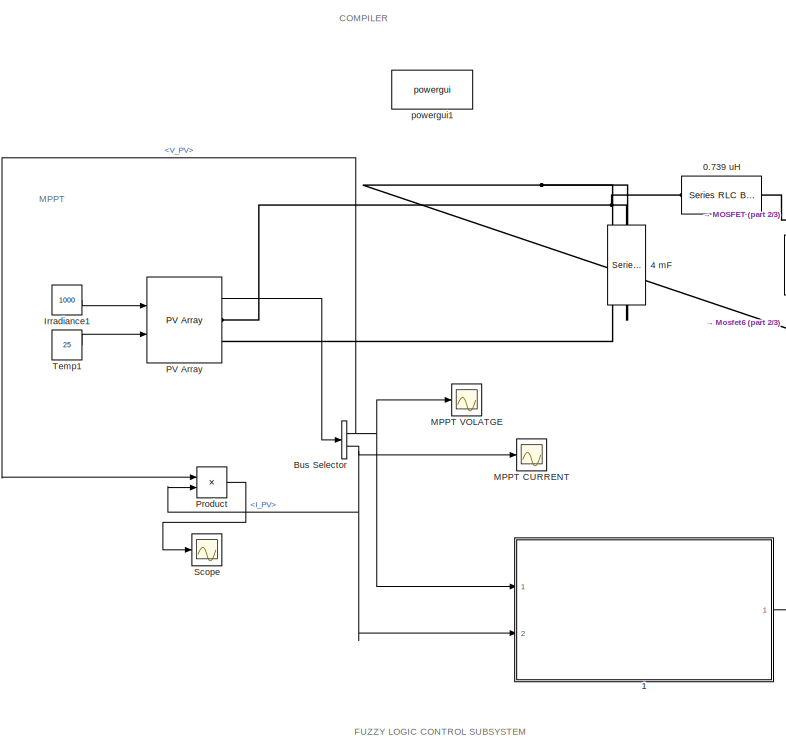
[diagram: root canvas - part 1/3, left side, full height]
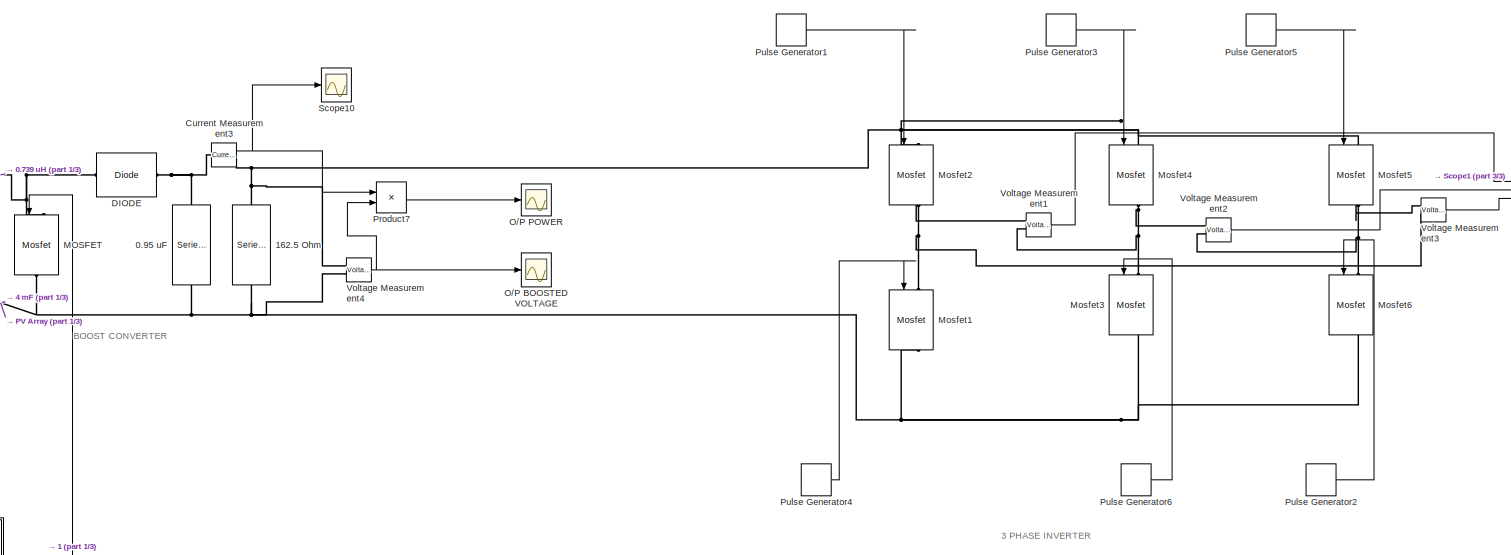
[diagram: root canvas - part 2/3, central region]
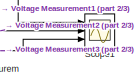
[diagram: root canvas - part 3/3, top right region]
MODEL slx_f401bb2e6b89
KIND model
CONFIG AbsTol = auto
CONFIG EnableMultiTasking = off
CONFIG FixedStep = 1e-10
CONFIG MaxStep = auto
CONFIG MinStep = auto
CONFIG RelTol = 1e-3
CONFIG SampleTimeConstraint = Unconstrained
CONFIG Solver = VariableStepAuto
CONFIG SolverName = VariableStepAuto
CONFIG StartTime = 0.0
CONFIG StopTime = 10.0
BLOCK [Reference] 0.739 uH  REF=powerlib/Elements/Series RLC Branch
  Ports = [0, 0, 0, 0, 0, 1, 1]
  SourceBlock = powerlib/Elements/Series RLC Branch
  SourceProductBaseCode = PS
  SourceType = Series RLC Branch
BLOCK [Reference] 0.95 uF  REF=powerlib/Elements/Series RLC Branch
  NameLocation = left
  Ports = [0, 0, 0, 0, 0, 1, 1]
  SourceBlock = powerlib/Elements/Series RLC Branch
  SourceProductBaseCode = PS
  SourceType = Series RLC Branch
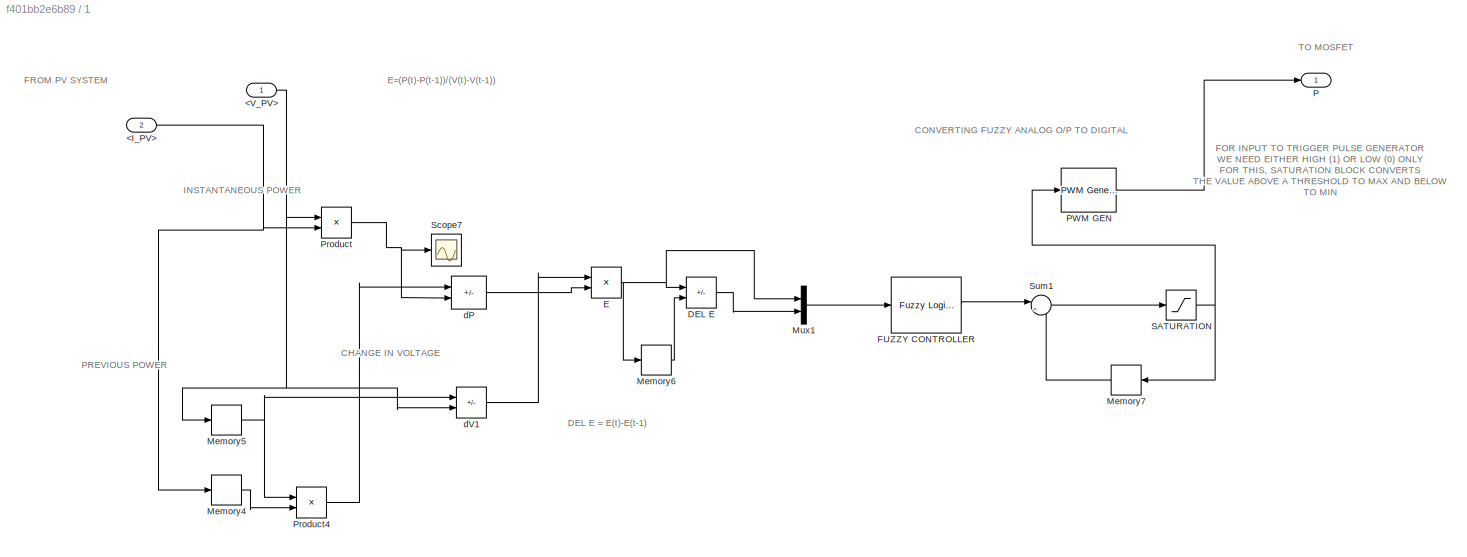
BLOCK [SubSystem] 1
  Ports = [2, 1]
  RequestExecContextInheritance = off
BLOCK [Inport] 1/<I_PV>
  Port = 2
BLOCK [Inport] 1/<V_PV>
BLOCK [Sum] 1/DEL E
  IconShape = rectangular
  Inputs = +-
  Ports = [2, 1]
BLOCK [Product] 1/E
  Inputs = */
  Ports = [2, 1]
BLOCK [Reference] 1/FUZZY CONTROLLER  REF=fuzblock/Fuzzy Logic   (lib defined in mdl_858b3b3e7478)
Controller
  Ports = [1, 1]
  SourceBlock = fuzblock/Fuzzy Logic \nController
  SourceProductBaseCode = FL
  SourceType = Fuzzy Inference System
BLOCK [Memory] 1/Memory4
BLOCK [Memory] 1/Memory5
BLOCK [Memory] 1/Memory6
BLOCK [Memory] 1/Memory7
  NameLocation = top
BLOCK [Mux] 1/Mux1
  DisplayOption = bar
  Inputs = 2
  Ports = [2, 1]
BLOCK [Outport] 1/P
BLOCK [Reference] 1/PWM GEN  REF=powerlib_meascontrol/Pulse & Signal
Generators/PWM Generator
(DC-DC)
  Ports = [1, 1]
  SourceBlock = powerlib_meascontrol/Pulse & Signal\nGenerators/PWM Generator\n(DC-DC)
  SourceProductBaseCode = PS
  SourceType = PWM Generator (DC-DC)
BLOCK [Product] 1/Product
  Ports = [2, 1]
BLOCK [Product] 1/Product4
  Ports = [2, 1]
BLOCK [Saturate] 1/SATURATION
BLOCK [Scope] 1/Scope7
  Floating = off
  NumInputPorts = 1
  Ports = [1]
  ScopeSpecificationString = Simulink.scopes.TimeScopeBlockCfg('CurrentConfiguration', extmgr.ConfigurationSet(extmgr.Configuration('Core','General UI',true),extmgr.Configuration('Core','Source UI',true),extmgr.Configuration('Sources','WiredSimulink',true,'DataLoggingVariableName','ScopeData2'),extmgr.Configuration('Visuals','Time Domain',true,'SerializedDisplays',{struct('MinYLimReal','-21.46473','MaxYLimReal','193.18259','Y...<+1747ch>
BLOCK [Sum] 1/Sum1
  Inputs = |++
  Ports = [2, 1]
BLOCK [Sum] 1/dP
  IconShape = rectangular
  Inputs = +-
  Ports = [2, 1]
BLOCK [Sum] 1/dV1
  IconShape = rectangular
  Inputs = +-
  Ports = [2, 1]
BLOCK [Reference] 162.5 Ohm  REF=powerlib/Elements/Series RLC Branch
  NameLocation = right
  Ports = [0, 0, 0, 0, 0, 1, 1]
  SourceBlock = powerlib/Elements/Series RLC Branch
  SourceProductBaseCode = PS
  SourceType = Series RLC Branch
BLOCK [Reference] 4 mF  REF=powerlib/Elements/Series RLC Branch
  NameLocation = left
  Ports = [0, 0, 0, 0, 0, 1, 1]
  SourceBlock = powerlib/Elements/Series RLC Branch
  SourceProductBaseCode = PS
  SourceType = Series RLC Branch
BLOCK [BusSelector] Bus Selector
  OutputSignals = V_PV,I_PV
  Ports = [1, 2]
BLOCK [Reference] Current Measurement3  REF=powerlib/Measurements/Current Measurement
  Ports = [0, 1, 0, 0, 0, 1, 1]
  SourceBlock = powerlib/Measurements/Current Measurement
  SourceProductBaseCode = PS
  SourceType = Current Measurement
  UserDataPersistent = on
BLOCK [Reference] DIODE  REF=powerlib/Power
Electronics/Diode
  Ports = [0, 0, 0, 0, 0, 1, 1]
  SourceBlock = powerlib/Power\nElectronics/Diode
  SourceProductBaseCode = PS
  SourceType = Diode
BLOCK [Constant] Irradiance1
  Value = 1000
BLOCK [Reference] MOSFET  REF=powerlib/Power
Electronics/Mosfet
  NameLocation = left
  Ports = [1, 0, 0, 0, 0, 1, 1]
  SourceBlock = powerlib/Power\nElectronics/Mosfet
  SourceProductBaseCode = PS
  SourceType = Mosfet
BLOCK [Scope] MPPT CURRENT
  Floating = off
  NumInputPorts = 1
  Ports = [1]
  ScopeSpecificationString = Simulink.scopes.TimeScopeBlockCfg('CurrentConfiguration', extmgr.ConfigurationSet(extmgr.Configuration('Core','General UI',true),extmgr.Configuration('Core','Source UI',true),extmgr.Configuration('Sources','WiredSimulink',true,'DataLoggingVariableName','ScopeData6'),extmgr.Configuration('Visuals','Time Domain',true,'SerializedDisplays',{struct('MinYLimReal','8.03349','MaxYLimReal','8.24945','YLabe...<+1723ch>
BLOCK [Scope] MPPT VOLATGE
  Floating = off
  NumInputPorts = 1
  Ports = [1]
  ScopeSpecificationString = Simulink.scopes.TimeScopeBlockCfg('CurrentConfiguration', extmgr.ConfigurationSet(extmgr.Configuration('Core','General UI',true),extmgr.Configuration('Core','Source UI',true),extmgr.Configuration('Sources','WiredSimulink',true,'DataLoggingVariableName','ScopeData5'),extmgr.Configuration('Visuals','Time Domain',true,'SerializedDisplays',{struct('MinYLimReal','-2.67779','MaxYLimReal','24.10008','YLa...<+1759ch>
BLOCK [Reference] Mosfet1  REF=powerlib/Power
Electronics/Mosfet
  NameLocation = left
  Ports = [1, 1, 0, 0, 0, 1, 1]
  SourceBlock = powerlib/Power\nElectronics/Mosfet
  SourceProductBaseCode = PS
  SourceType = Mosfet
BLOCK [Reference] Mosfet2  REF=powerlib/Power
Electronics/Mosfet
  NameLocation = left
  Ports = [1, 1, 0, 0, 0, 1, 1]
  SourceBlock = powerlib/Power\nElectronics/Mosfet
  SourceProductBaseCode = PS
  SourceType = Mosfet
BLOCK [Reference] Mosfet3  REF=powerlib/Power
Electronics/Mosfet
  NameLocation = left
  Ports = [1, 1, 0, 0, 0, 1, 1]
  SourceBlock = powerlib/Power\nElectronics/Mosfet
  SourceProductBaseCode = PS
  SourceType = Mosfet
BLOCK [Reference] Mosfet4  REF=powerlib/Power
Electronics/Mosfet
  NameLocation = left
  Ports = [1, 1, 0, 0, 0, 1, 1]
  SourceBlock = powerlib/Power\nElectronics/Mosfet
  SourceProductBaseCode = PS
  SourceType = Mosfet
BLOCK [Reference] Mosfet5  REF=powerlib/Power
Electronics/Mosfet
  NameLocation = left
  Ports = [1, 1, 0, 0, 0, 1, 1]
  SourceBlock = powerlib/Power\nElectronics/Mosfet
  SourceProductBaseCode = PS
  SourceType = Mosfet
BLOCK [Reference] Mosfet6  REF=powerlib/Power
Electronics/Mosfet
  NameLocation = left
  Ports = [1, 1, 0, 0, 0, 1, 1]
  SourceBlock = powerlib/Power\nElectronics/Mosfet
  SourceProductBaseCode = PS
  SourceType = Mosfet
BLOCK [Scope] O//P BOOSTED VOLTAGE
  Floating = off
  NumInputPorts = 1
  Ports = [1]
  ScopeSpecificationString = Simulink.scopes.TimeScopeBlockCfg('CurrentConfiguration', extmgr.ConfigurationSet(extmgr.Configuration('Core','General UI',true),extmgr.Configuration('Core','Source UI',true),extmgr.Configuration('Sources','WiredSimulink',true,'DataLoggingVariableName','ScopeData1'),extmgr.Configuration('Visuals','Time Domain',true,'SerializedDisplays',{struct('MinYLimReal','-20.06921','MaxYLimReal','180.62285','Y...<+1987ch>
BLOCK [Scope] O//P POWER
  Floating = off
  NumInputPorts = 1
  Ports = [1]
  ScopeSpecificationString = Simulink.scopes.TimeScopeBlockCfg('CurrentConfiguration', extmgr.ConfigurationSet(extmgr.Configuration('Core','General UI',true),extmgr.Configuration('Core','Source UI',true),extmgr.Configuration('Sources','WiredSimulink',true,'DataLoggingVariableName','ScopeData3'),extmgr.Configuration('Visuals','Time Domain',true,'SerializedDisplays',{struct('MinYLimReal','-19.92549','MaxYLimReal','179.32942','Y...<+1767ch>
BLOCK [Reference] PV Array  REF=re_lib/Solar/PV Array
  Ports = [2, 1, 0, 0, 0, 0, 2]
  SourceBlock = re_lib/Solar/PV Array
  SourceProductBaseCode = PS
  SourceType = PV array
BLOCK [Product] Product
  Ports = [2, 1]
BLOCK [Product] Product7
  Ports = [2, 1]
BLOCK [DiscretePulseGenerator] Pulse Generator1
  Period = 0.02
  Ports = [0, 1]
  PulseType = Time based
  PulseWidth = 50
BLOCK [DiscretePulseGenerator] Pulse Generator2
  Period = 0.02
  PhaseDelay = 1/300
  Ports = [0, 1]
  PulseType = Time based
  PulseWidth = 50
BLOCK [DiscretePulseGenerator] Pulse Generator3
  Period = 0.02
  PhaseDelay = 2/300
  Ports = [0, 1]
  PulseType = Time based
  PulseWidth = 50
BLOCK [DiscretePulseGenerator] Pulse Generator4
  Period = 0.02
  PhaseDelay = 3/300
  Ports = [0, 1]
  PulseType = Time based
  PulseWidth = 50
BLOCK [DiscretePulseGenerator] Pulse Generator5
  Period = 0.02
  PhaseDelay = 4/300
  Ports = [0, 1]
  PulseType = Time based
  PulseWidth = 50
BLOCK [DiscretePulseGenerator] Pulse Generator6
  Period = 0.02
  PhaseDelay = 5/300
  Ports = [0, 1]
  PulseType = Time based
  PulseWidth = 50
BLOCK [Scope] Scope
  Floating = off
  NumInputPorts = 1
  Ports = [1]
  ScopeSpecificationString = Simulink.scopes.TimeScopeBlockCfg('CurrentConfiguration', extmgr.ConfigurationSet(extmgr.Configuration('Core','General UI',true),extmgr.Configuration('Core','Source UI',true),extmgr.Configuration('Sources','WiredSimulink',true,'DataLoggingVariableName','ScopeData1'),extmgr.Configuration('Visuals','Time Domain',true,'SerializedDisplays',{struct('MinYLimReal','-21.56981','MaxYLimReal','194.1283','YL...<+1397ch>
BLOCK [Scope] Scope1
  Floating = off
  NumInputPorts = 3
  Ports = [3]
  ScopeSpecificationString = Simulink.scopes.TimeScopeBlockCfg('CurrentConfiguration', extmgr.ConfigurationSet(extmgr.Configuration('Core','General UI',true),extmgr.Configuration('Core','Source UI',true),extmgr.Configuration('Sources','WiredSimulink',true,'DataLoggingVariableName','ScopeData1'),extmgr.Configuration('Visuals','Time Domain',true,'SerializedDisplays',{struct('MinYLimReal','-200.67612','MaxYLimReal','200.55181','...<+2877ch>
BLOCK [Scope] Scope10
  Floating = off
  NumInputPorts = 1
  Ports = [1]
  ScopeSpecificationString = Simulink.scopes.TimeScopeBlockCfg('CurrentConfiguration', extmgr.ConfigurationSet(extmgr.Configuration('Core','General UI',true),extmgr.Configuration('Core','Source UI',true),extmgr.Configuration('Sources','WiredSimulink',true,'DataLoggingVariableName','ScopeData4'),extmgr.Configuration('Visuals','Time Domain',true,'SerializedDisplays',{struct('MinYLimReal','-1.00000','MaxYLimReal','1.00000','YLab...<+1429ch>
BLOCK [Constant] Temp1
  Value = 25
BLOCK [Reference] Voltage Measurement1  REF=powerlib/Measurements/Voltage Measurement
  Ports = [0, 1, 0, 0, 0, 2]
  SourceBlock = powerlib/Measurements/Voltage Measurement
  SourceProductBaseCode = PS
  SourceType = Voltage Measurement
  UserDataPersistent = on
BLOCK [Reference] Voltage Measurement2  REF=powerlib/Measurements/Voltage Measurement
  Ports = [0, 1, 0, 0, 0, 2]
  SourceBlock = powerlib/Measurements/Voltage Measurement
  SourceProductBaseCode = PS
  SourceType = Voltage Measurement
  UserDataPersistent = on
BLOCK [Reference] Voltage Measurement3  REF=powerlib/Measurements/Voltage Measurement
  Ports = [0, 1, 0, 0, 0, 2]
  SourceBlock = powerlib/Measurements/Voltage Measurement
  SourceProductBaseCode = PS
  SourceType = Voltage Measurement
  UserDataPersistent = on
BLOCK [Reference] Voltage Measurement4  REF=powerlib/Measurements/Voltage Measurement
  Ports = [0, 1, 0, 0, 0, 2]
  SourceBlock = powerlib/Measurements/Voltage Measurement
  SourceProductBaseCode = PS
  SourceType = Voltage Measurement
  UserDataPersistent = on
BLOCK [Reference] powergui1  REF=powerlib/powergui
  Ports = []
  Priority = 1
  SourceBlock = powerlib/powergui
  SourceProductBaseCode = PS
  SourceType = PSB option menu block
ANNOTATION (root): 3 PHASE INVERTER
ANNOTATION (root): BOOST CONVERTER
ANNOTATION (root): COMPILER
ANNOTATION (root): FUZZY LOGIC CONTROL SUBSYSTEM
ANNOTATION (root): MPPT
ANNOTATION 1: FROM PV SYSTEM
ANNOTATION 1: TO MOSFET
ANNOTATION 1: FOR INPUT TO TRIGGER PULSE GENERATOR WE NEED EITHER HIGH (1) OR LOW (0) ONLY FOR THIS, SATURATION BLOCK CONVERTS THE VALUE ABOVE A THRESHOLD TO MAX AND BELOW TO MIN
ANNOTATION 1: DEL E = E(t)-E(t-1)
ANNOTATION 1: E=(P(t)-P(t-1))/(V(t)-V(t-1))
ANNOTATION 1: CHANGE IN VOLTAGE
ANNOTATION 1: CONVERTING FUZZY ANALOG O/P TO DIGITAL
ANNOTATION 1: INSTANTANEOUS POWER
ANNOTATION 1: PREVIOUS POWER
NET 1/<I_PV>:1 -> 1/Memory4:1, 1/Product:2
NET 1/<V_PV>:1 -> 1/Memory5:1, 1/Product:1, 1/dV1:2
LINE 1/DEL E:1 -> 1/Mux1:2
NET 1/E:1 -> 1/DEL E:1, 1/Memory6:1, 1/Mux1:1
LINE 1/FUZZY CONTROLLER:1 -> 1/Sum1:1
LINE 1/Memory4:1 -> 1/Product4:2
NET 1/Memory5:1 -> 1/Product4:1, 1/dV1:1
LINE 1/Memory6:1 -> 1/DEL E:2
LINE 1/Memory7:1 -> 1/Sum1:2
LINE 1/Mux1:1 -> 1/FUZZY CONTROLLER:1
LINE 1/PWM GEN:1 -> 1/P:1
LINE 1/Product4:1 -> 1/dP:1
NET 1/Product:1 -> 1/Scope7:1, 1/dP:2
NET 1/SATURATION:1 -> 1/Memory7:1, 1/PWM GEN:1
LINE 1/Sum1:1 -> 1/SATURATION:1
LINE 1/dP:1 -> 1/E:2
LINE 1/dV1:1 -> 1/E:1
LINE 1:1 -> MOSFET:1
NET Bus Selector:1 -> 1:1, MPPT VOLATGE:1, Product:1
NET Bus Selector:2 -> 1:2, MPPT CURRENT:1, Product:2
NET Current Measurement3:1 -> Product7:1, Scope10:1
LINE Irradiance1:1 -> PV Array:1
LINE PV Array:1 -> Bus Selector:1
LINE Product7:1 -> O//P POWER:1
LINE Product:1 -> Scope:1
LINE Pulse Generator1:1 -> Mosfet2:1
LINE Pulse Generator2:1 -> Mosfet6:1
LINE Pulse Generator3:1 -> Mosfet4:1
LINE Pulse Generator4:1 -> Mosfet1:1
LINE Pulse Generator5:1 -> Mosfet5:1
LINE Pulse Generator6:1 -> Mosfet3:1
LINE Temp1:1 -> PV Array:2
LINE Voltage Measurement1:1 -> Scope1:1
LINE Voltage Measurement2:1 -> Scope1:2
LINE Voltage Measurement3:1 -> Scope1:3
NET Voltage Measurement4:1 -> O//P BOOSTED VOLTAGE:1, Product7:2
PNET net1: 0.739 uH:LConn1 -- 4 mF:LConn1 -- PV Array:RConn1
PNET net2: 0.739 uH:RConn1 -- DIODE:LConn1 -- MOSFET:LConn1
PNET net3: 0.95 uF:LConn1 -- Current Measurement3:LConn1 -- DIODE:RConn1
PNET net4: 0.95 uF:RConn1 -- 162.5 Ohm:RConn1 -- 4 mF:RConn1 -- MOSFET:RConn1 -- Mosfet1:RConn1 -- Mosfet3:RConn1 -- Mosfet6:RConn1 -- PV Array:RConn2 -- Voltage Measurement4:LConn2
PNET net5: 162.5 Ohm:LConn1 -- Current Measurement3:RConn1 -- Mosfet2:LConn1 -- Mosfet4:LConn1 -- Mosfet5:LConn1 -- Voltage Measurement4:LConn1
PNET net6: Mosfet1:LConn1 -- Mosfet2:RConn1 -- Voltage Measurement1:LConn1 -- Voltage Measurement3:LConn2
PNET net7: Mosfet3:LConn1 -- Mosfet4:RConn1 -- Voltage Measurement1:LConn2 -- Voltage Measurement2:LConn1
PNET net8: Mosfet5:RConn1 -- Mosfet6:LConn1 -- Voltage Measurement2:LConn2 -- Voltage Measurement3:LConn1
note: NET lines group one-source signal fan-out (src -> all destinations, sorted); 1:1 wires keep LINE; PNET lines group multi-terminal physical nets as a canonical sorted terminal list (undirected conserving connections); 2-terminal nets keep the pairwise PLINE form
